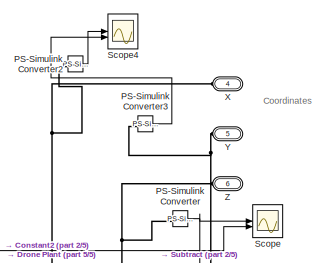
[diagram: root canvas - part 1/5, top right region]
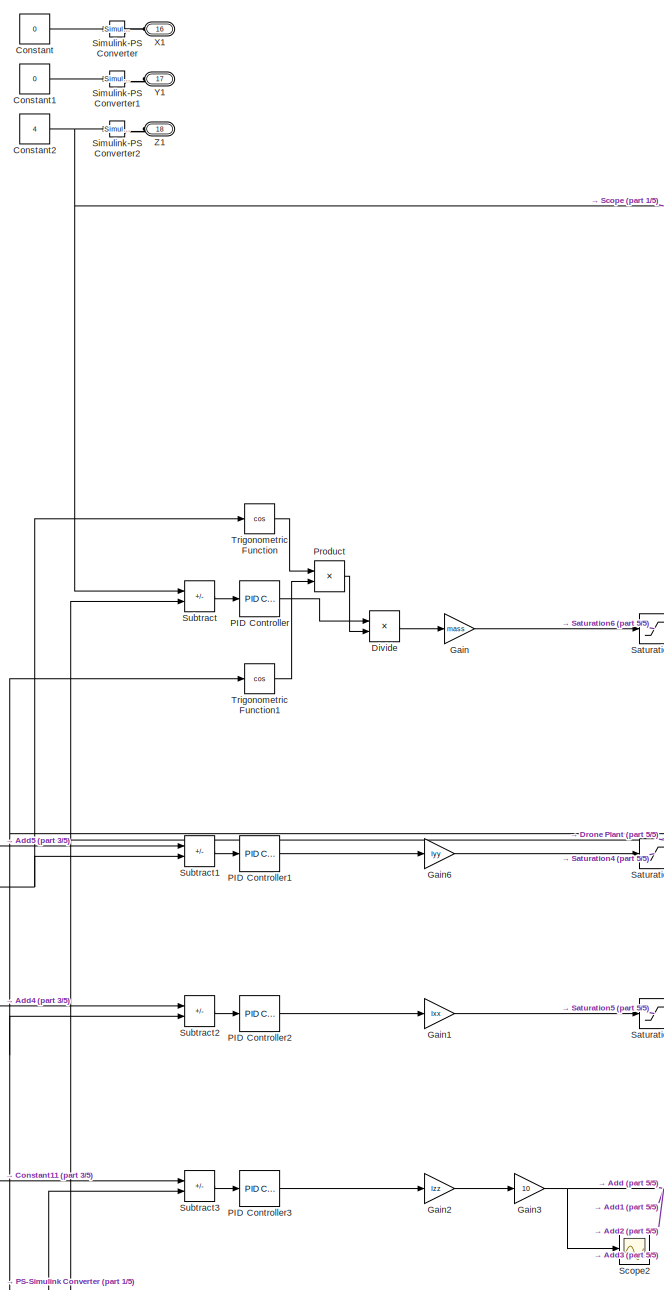
[diagram: root canvas - part 2/5, middle left region]
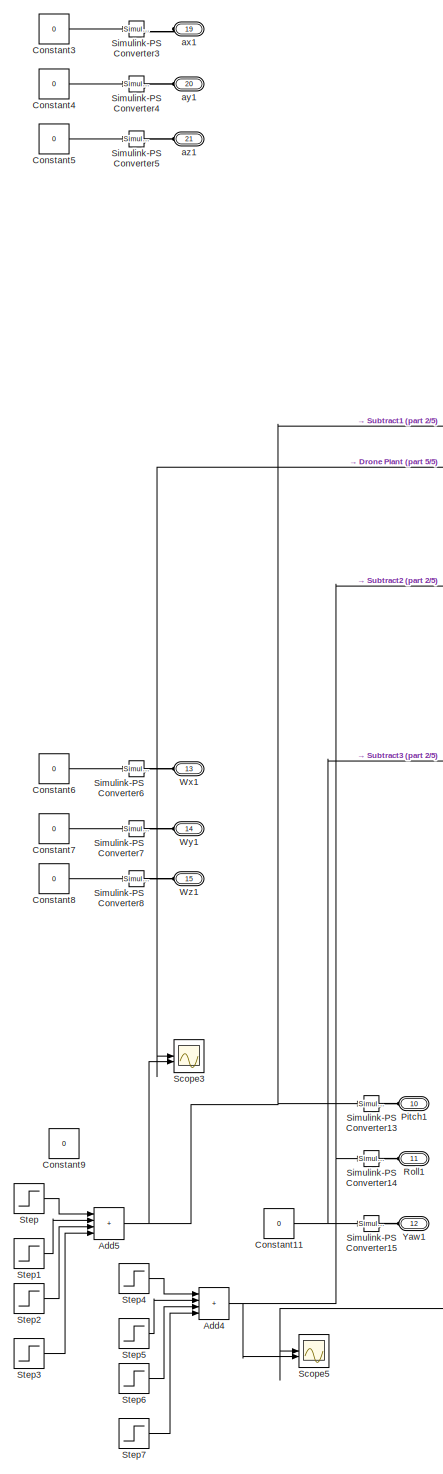
[diagram: root canvas - part 3/5, middle left region]
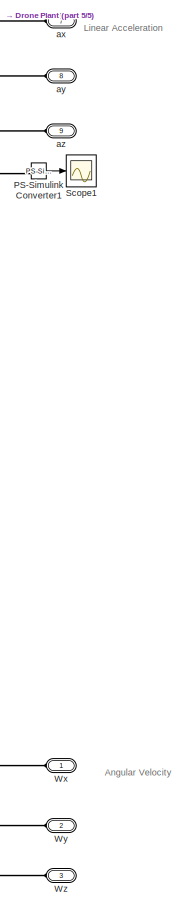
[diagram: root canvas - part 4/5, middle right region]
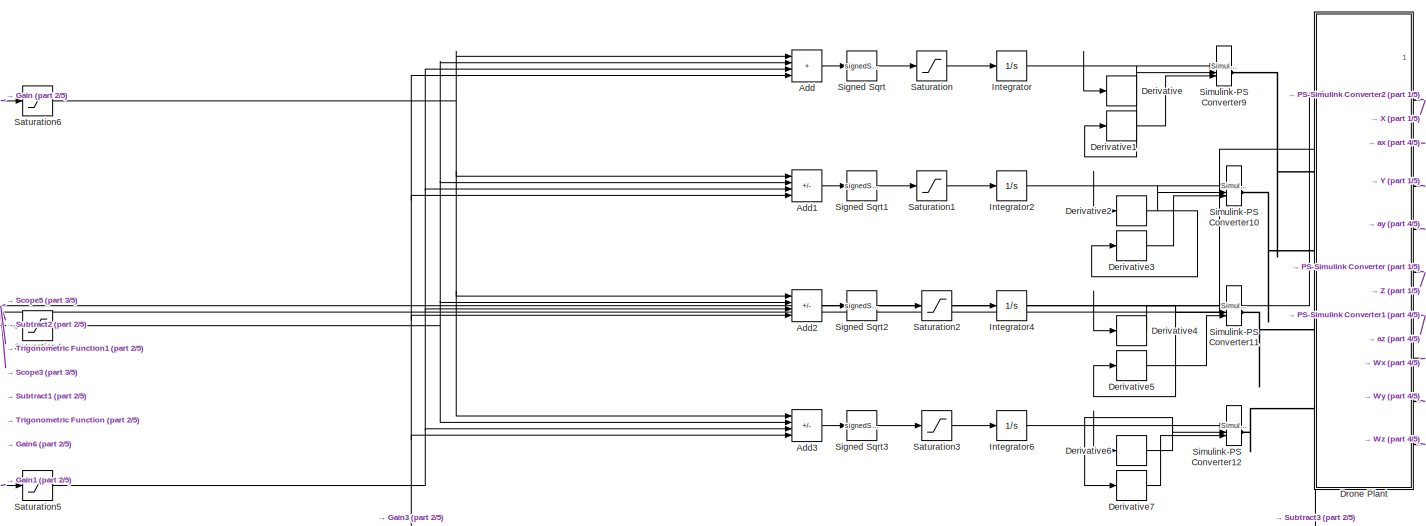
[diagram: root canvas - part 5/5, central region]
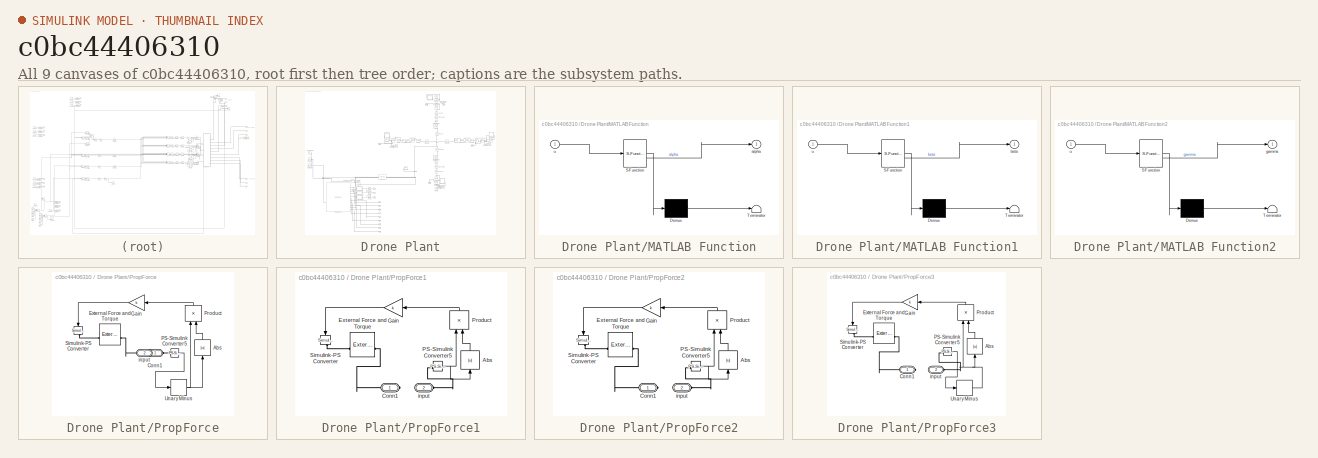
[diagram: thumbnail index - all 9 canvases of the model, root first then tree order]
MODEL slx_c0bc44406310
KIND model
CONFIG AbsTol = 1e-3
CONFIG EnableMultiTasking = on
CONFIG FixedStep = auto
CONFIG MaxStep = auto
CONFIG MinStep = auto
CONFIG RelTol = 1e-3
CONFIG SampleTimeConstraint = Unconstrained
CONFIG SolverName = VariableStepAuto
CONFIG StartTime = 0.0
CONFIG StopTime = 50
BLOCK [Sum] Add
  IconShape = rectangular
  Inputs = ++++
BLOCK [Sum] Add1
  IconShape = rectangular
  Inputs = ++--
BLOCK [Sum] Add2
  IconShape = rectangular
  Inputs = +--+
BLOCK [Sum] Add3
  IconShape = rectangular
  Inputs = +-+-
BLOCK [Sum] Add4
  IconShape = rectangular
  Inputs = ++++
BLOCK [Sum] Add5
  IconShape = rectangular
  Inputs = ++++
BLOCK [Constant] Constant
  Value = 0
BLOCK [Constant] Constant1
  Value = 0
BLOCK [Constant] Constant11
  Value = 0
BLOCK [Constant] Constant2
  Value = 4
BLOCK [Constant] Constant3
  Value = 0
BLOCK [Constant] Constant4
  Value = 0
BLOCK [Constant] Constant5
  Value = 0
BLOCK [Constant] Constant6
  Value = 0
BLOCK [Constant] Constant7
  Value = 0
BLOCK [Constant] Constant8
  Value = 0
BLOCK [Constant] Constant9
  Value = 0
BLOCK [Derivative] Derivative
BLOCK [Derivative] Derivative1
BLOCK [Derivative] Derivative2
BLOCK [Derivative] Derivative3
BLOCK [Derivative] Derivative4
BLOCK [Derivative] Derivative5
BLOCK [Derivative] Derivative6
BLOCK [Derivative] Derivative7
BLOCK [Product] Divide
  Inputs = */
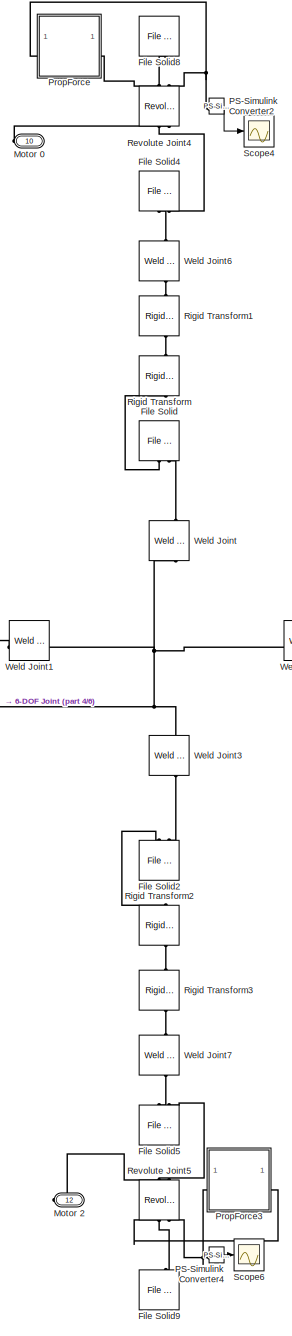
[diagram: Drone Plant - part 1/6, middle right region]
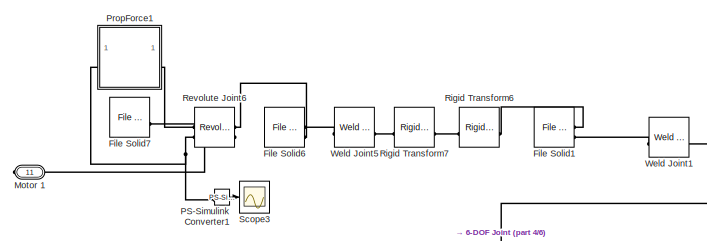
[diagram: Drone Plant - part 2/6, central region]
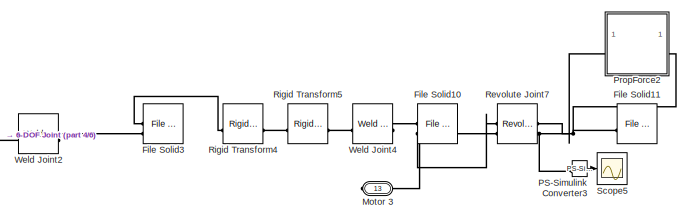
[diagram: Drone Plant - part 3/6, middle right region]
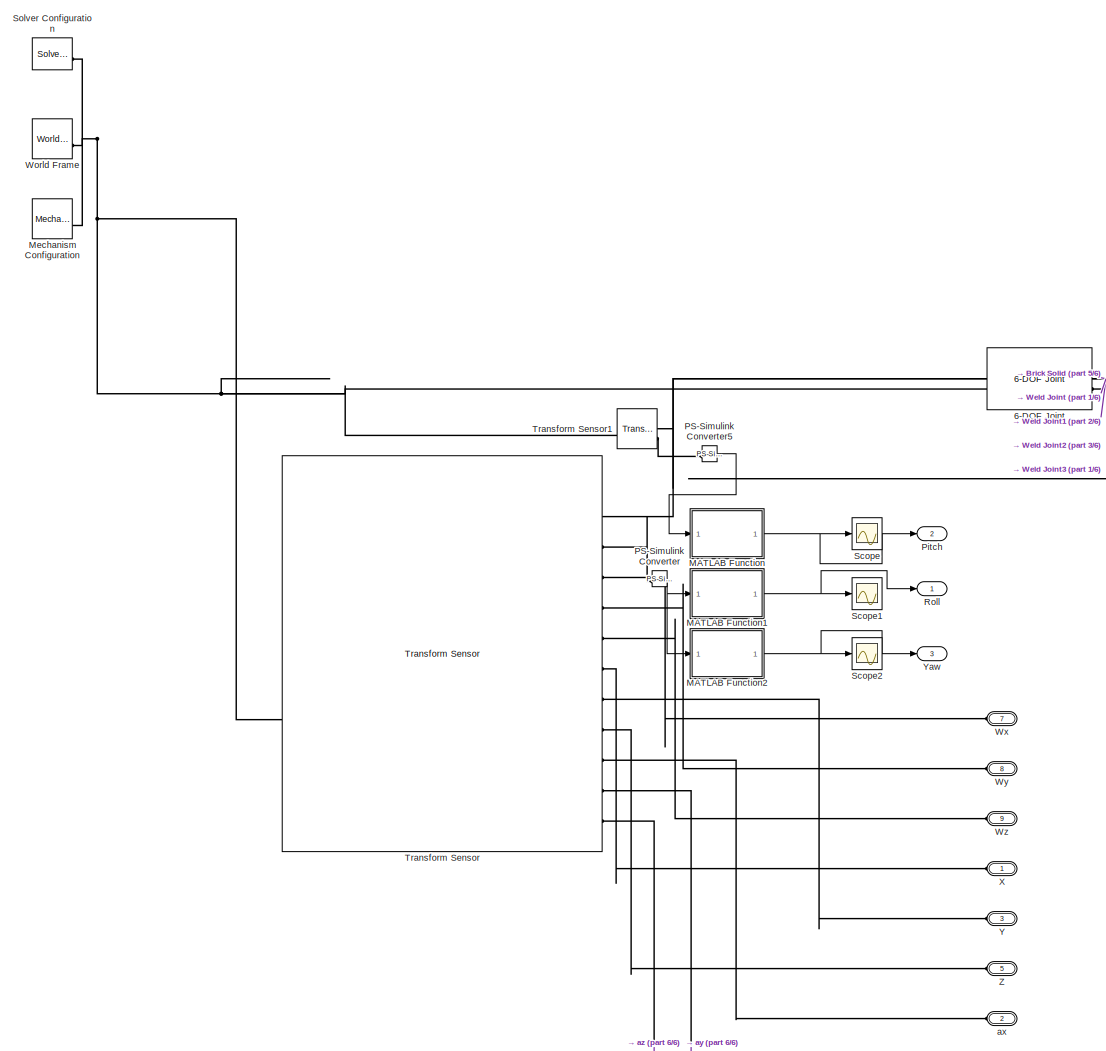
[diagram: Drone Plant - part 4/6, bottom left region]
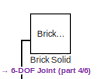
[diagram: Drone Plant - part 5/6, central region]
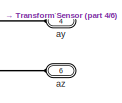
[diagram: Drone Plant - part 6/6, bottom center region]
BLOCK [SubSystem] Drone Plant
  NameLocation = top
BLOCK [Reference] Drone Plant/6-DOF Joint  REF=sm_lib/Joints/6-DOF Joint
  SourceBlock = sm_lib/Joints/6-DOF Joint
  SourceType = 6-DOF Joint
BLOCK [Reference] Drone Plant/Brick Solid  REF=sm_lib/Body Elements/Brick Solid
  SourceBlock = sm_lib/Body Elements/Brick Solid
  SourceType = Brick Solid
BLOCK [Reference] Drone Plant/File Solid  REF=sm_lib/Body Elements/File Solid
  NameLocation = right
  SourceBlock = sm_lib/Body Elements/File Solid
  SourceType = File Solid
BLOCK [Reference] Drone Plant/File Solid1  REF=sm_lib/Body Elements/File Solid
  SourceBlock = sm_lib/Body Elements/File Solid
  SourceType = File Solid
BLOCK [Reference] Drone Plant/File Solid10  REF=sm_lib/Body Elements/File Solid
  SourceBlock = sm_lib/Body Elements/File Solid
  SourceType = File Solid
BLOCK [Reference] Drone Plant/File Solid11  REF=sm_lib/Body Elements/File Solid
  SourceBlock = sm_lib/Body Elements/File Solid
  SourceType = File Solid
BLOCK [Reference] Drone Plant/File Solid2  REF=sm_lib/Body Elements/File Solid
  NameLocation = left
  SourceBlock = sm_lib/Body Elements/File Solid
  SourceType = File Solid
BLOCK [Reference] Drone Plant/File Solid3  REF=sm_lib/Body Elements/File Solid
  SourceBlock = sm_lib/Body Elements/File Solid
  SourceType = File Solid
BLOCK [Reference] Drone Plant/File Solid4  REF=sm_lib/Body Elements/File Solid
  NameLocation = right
  SourceBlock = sm_lib/Body Elements/File Solid
  SourceType = File Solid
BLOCK [Reference] Drone Plant/File Solid5  REF=sm_lib/Body Elements/File Solid
  NameLocation = left
  SourceBlock = sm_lib/Body Elements/File Solid
  SourceType = File Solid
BLOCK [Reference] Drone Plant/File Solid6  REF=sm_lib/Body Elements/File Solid
  NameLocation = top
  SourceBlock = sm_lib/Body Elements/File Solid
  SourceType = File Solid
BLOCK [Reference] Drone Plant/File Solid7  REF=sm_lib/Body Elements/File Solid
  NameLocation = top
  SourceBlock = sm_lib/Body Elements/File Solid
  SourceType = File Solid
BLOCK [Reference] Drone Plant/File Solid8  REF=sm_lib/Body Elements/File Solid
  NameLocation = right
  SourceBlock = sm_lib/Body Elements/File Solid
  SourceType = File Solid
BLOCK [Reference] Drone Plant/File Solid9  REF=sm_lib/Body Elements/File Solid
  NameLocation = left
  SourceBlock = sm_lib/Body Elements/File Solid
  SourceType = File Solid
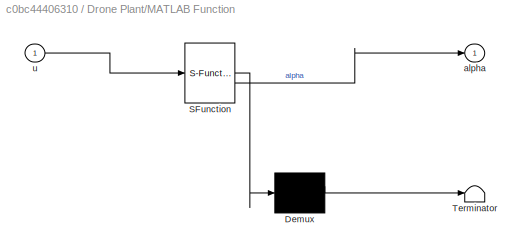
BLOCK [SubSystem] Drone Plant/MATLAB Function
  ErrorFcn = Stateflow.Translate.translate
  LibrarySourceBlock = simulink/User-Defined\nFunctions/MATLAB Function
  PermitHierarchicalResolution = ExplicitOnly
  SFBlockType = MATLAB Function
  TreatAsAtomicUnit = on
BLOCK [Demux] Drone Plant/MATLAB Function/ Demux 
  Outputs = 1
BLOCK [S-Function] Drone Plant/MATLAB Function/ SFunction 
  EnableBusSupport = on
  FunctionName = sf_sfun
  PortCounts = [1 2]
  SFcnIsStateOwnerBlock = off
  SFunctionDeploymentMode = off
  Tag = Stateflow S-Function 2
BLOCK [Terminator] Drone Plant/MATLAB Function/ Terminator 
BLOCK [Outport] Drone Plant/MATLAB Function/alpha
BLOCK [Inport] Drone Plant/MATLAB Function/u
BLOCK [SubSystem] Drone Plant/MATLAB Function1
  ErrorFcn = Stateflow.Translate.translate
  LibrarySourceBlock = simulink/User-Defined\nFunctions/MATLAB Function
  PermitHierarchicalResolution = ExplicitOnly
  SFBlockType = MATLAB Function
  TreatAsAtomicUnit = on
BLOCK [Demux] Drone Plant/MATLAB Function1/ Demux 
  Outputs = 1
BLOCK [S-Function] Drone Plant/MATLAB Function1/ SFunction 
  EnableBusSupport = on
  FunctionName = sf_sfun
  PortCounts = [1 2]
  SFcnIsStateOwnerBlock = off
  SFunctionDeploymentMode = off
  Tag = Stateflow S-Function 1
BLOCK [Terminator] Drone Plant/MATLAB Function1/ Terminator 
BLOCK [Outport] Drone Plant/MATLAB Function1/beta
BLOCK [Inport] Drone Plant/MATLAB Function1/u
BLOCK [SubSystem] Drone Plant/MATLAB Function2
  ErrorFcn = Stateflow.Translate.translate
  LibrarySourceBlock = simulink/User-Defined\nFunctions/MATLAB Function
  PermitHierarchicalResolution = ExplicitOnly
  SFBlockType = MATLAB Function
  TreatAsAtomicUnit = on
BLOCK [Demux] Drone Plant/MATLAB Function2/ Demux 
  Outputs = 1
BLOCK [S-Function] Drone Plant/MATLAB Function2/ SFunction 
  EnableBusSupport = on
  FunctionName = sf_sfun
  PortCounts = [1 2]
  SFcnIsStateOwnerBlock = off
  SFunctionDeploymentMode = off
  Tag = Stateflow S-Function 3
BLOCK [Terminator] Drone Plant/MATLAB Function2/ Terminator 
BLOCK [Outport] Drone Plant/MATLAB Function2/gamma
BLOCK [Inport] Drone Plant/MATLAB Function2/u
BLOCK [Reference] Drone Plant/Mechanism Configuration  REF=sm_lib/Utilities/Mechanism
Configuration
  SourceBlock = sm_lib/Utilities/Mechanism\nConfiguration
  SourceType = Mechanism\nConfiguration
BLOCK [PMIOPort] Drone Plant/Motor 0
  Port = 10
  Side = Right
BLOCK [PMIOPort] Drone Plant/Motor 1
  Port = 11
  Side = Right
BLOCK [PMIOPort] Drone Plant/Motor 2
  Port = 12
  Side = Right
BLOCK [PMIOPort] Drone Plant/Motor 3
  Port = 13
  Side = Right
BLOCK [Reference] Drone Plant/PS-Simulink Converter  REF=nesl_utility/PS-Simulink
Converter
  SourceBlock = nesl_utility/PS-Simulink\nConverter
  SourceType = PS-Simulink\nConverter
BLOCK [Reference] Drone Plant/PS-Simulink Converter1  REF=nesl_utility/PS-Simulink
Converter
  SourceBlock = nesl_utility/PS-Simulink\nConverter
  SourceType = PS-Simulink\nConverter
BLOCK [Reference] Drone Plant/PS-Simulink Converter2  REF=nesl_utility/PS-Simulink
Converter
  SourceBlock = nesl_utility/PS-Simulink\nConverter
  SourceType = PS-Simulink\nConverter
BLOCK [Reference] Drone Plant/PS-Simulink Converter3  REF=nesl_utility/PS-Simulink
Converter
  SourceBlock = nesl_utility/PS-Simulink\nConverter
  SourceType = PS-Simulink\nConverter
BLOCK [Reference] Drone Plant/PS-Simulink Converter4  REF=nesl_utility/PS-Simulink
Converter
  SourceBlock = nesl_utility/PS-Simulink\nConverter
  SourceType = PS-Simulink\nConverter
BLOCK [Reference] Drone Plant/PS-Simulink Converter5  REF=nesl_utility/PS-Simulink
Converter
  SourceBlock = nesl_utility/PS-Simulink\nConverter
  SourceType = PS-Simulink\nConverter
BLOCK [Outport] Drone Plant/Pitch
  Port = 2
BLOCK [SubSystem] Drone Plant/PropForce
BLOCK [Abs] Drone Plant/PropForce/Abs
  NameLocation = right
  SaturateOnIntegerOverflow = off
BLOCK [PMIOPort] Drone Plant/PropForce/Conn1
  Side = Right
BLOCK [Reference] Drone Plant/PropForce/External Force and Torque  REF=sm_lib/Forces and
Torques/External Force
and Torque
  SourceBlock = sm_lib/Forces and\nTorques/External Force\nand Torque
  SourceType = External Force\nand Torque
BLOCK [Gain] Drone Plant/PropForce/Gain
  Gain = k
  NameLocation = top
BLOCK [Reference] Drone Plant/PropForce/PS-Simulink Converter5  REF=nesl_utility/PS-Simulink
Converter
  SourceBlock = nesl_utility/PS-Simulink\nConverter
  SourceType = PS-Simulink\nConverter
BLOCK [Product] Drone Plant/PropForce/Product
  NameLocation = right
BLOCK [Reference] Drone Plant/PropForce/Simulink-PS Converter  REF=nesl_utility/Simulink-PS
Converter
  NameLocation = left
  SourceBlock = nesl_utility/Simulink-PS\nConverter
  SourceType = Simulink-PS\nConverter
BLOCK [UnaryMinus] Drone Plant/PropForce/Unary Minus
BLOCK [PMIOPort] Drone Plant/PropForce/input
  Port = 2
  Side = Left
BLOCK [SubSystem] Drone Plant/PropForce1
BLOCK [Abs] Drone Plant/PropForce1/Abs
  NameLocation = right
  SaturateOnIntegerOverflow = off
BLOCK [PMIOPort] Drone Plant/PropForce1/Conn1
  Side = Right
BLOCK [Reference] Drone Plant/PropForce1/External Force and Torque  REF=sm_lib/Forces and
Torques/External Force
and Torque
  SourceBlock = sm_lib/Forces and\nTorques/External Force\nand Torque
  SourceType = External Force\nand Torque
BLOCK [Gain] Drone Plant/PropForce1/Gain
  Gain = k
  NameLocation = top
BLOCK [Reference] Drone Plant/PropForce1/PS-Simulink Converter5  REF=nesl_utility/PS-Simulink
Converter
  SourceBlock = nesl_utility/PS-Simulink\nConverter
  SourceType = PS-Simulink\nConverter
BLOCK [Product] Drone Plant/PropForce1/Product
  NameLocation = right
BLOCK [Reference] Drone Plant/PropForce1/Simulink-PS Converter  REF=nesl_utility/Simulink-PS
Converter
  NameLocation = left
  SourceBlock = nesl_utility/Simulink-PS\nConverter
  SourceType = Simulink-PS\nConverter
BLOCK [PMIOPort] Drone Plant/PropForce1/input
  Port = 2
  Side = Left
BLOCK [SubSystem] Drone Plant/PropForce2
BLOCK [Abs] Drone Plant/PropForce2/Abs
  NameLocation = right
  SaturateOnIntegerOverflow = off
BLOCK [PMIOPort] Drone Plant/PropForce2/Conn1
  Side = Right
BLOCK [Reference] Drone Plant/PropForce2/External Force and Torque  REF=sm_lib/Forces and
Torques/External Force
and Torque
  SourceBlock = sm_lib/Forces and\nTorques/External Force\nand Torque
  SourceType = External Force\nand Torque
BLOCK [Gain] Drone Plant/PropForce2/Gain
  Gain = k
  NameLocation = top
BLOCK [Reference] Drone Plant/PropForce2/PS-Simulink Converter5  REF=nesl_utility/PS-Simulink
Converter
  SourceBlock = nesl_utility/PS-Simulink\nConverter
  SourceType = PS-Simulink\nConverter
BLOCK [Product] Drone Plant/PropForce2/Product
  NameLocation = right
BLOCK [Reference] Drone Plant/PropForce2/Simulink-PS Converter  REF=nesl_utility/Simulink-PS
Converter
  NameLocation = left
  SourceBlock = nesl_utility/Simulink-PS\nConverter
  SourceType = Simulink-PS\nConverter
BLOCK [PMIOPort] Drone Plant/PropForce2/input
  Port = 2
  Side = Left
BLOCK [SubSystem] Drone Plant/PropForce3
BLOCK [Abs] Drone Plant/PropForce3/Abs
  NameLocation = right
  SaturateOnIntegerOverflow = off
BLOCK [PMIOPort] Drone Plant/PropForce3/Conn1
  Side = Right
BLOCK [Reference] Drone Plant/PropForce3/External Force and Torque  REF=sm_lib/Forces and
Torques/External Force
and Torque
  SourceBlock = sm_lib/Forces and\nTorques/External Force\nand Torque
  SourceType = External Force\nand Torque
BLOCK [Gain] Drone Plant/PropForce3/Gain
  Gain = k
  NameLocation = top
BLOCK [Reference] Drone Plant/PropForce3/PS-Simulink Converter5  REF=nesl_utility/PS-Simulink
Converter
  SourceBlock = nesl_utility/PS-Simulink\nConverter
  SourceType = PS-Simulink\nConverter
BLOCK [Product] Drone Plant/PropForce3/Product
  NameLocation = right
BLOCK [Reference] Drone Plant/PropForce3/Simulink-PS Converter  REF=nesl_utility/Simulink-PS
Converter
  NameLocation = left
  SourceBlock = nesl_utility/Simulink-PS\nConverter
  SourceType = Simulink-PS\nConverter
BLOCK [UnaryMinus] Drone Plant/PropForce3/Unary Minus
BLOCK [PMIOPort] Drone Plant/PropForce3/input
  Port = 2
  Side = Left
BLOCK [Reference] Drone Plant/Revolute Joint4  REF=sm_lib/Joints/Revolute Joint
  NameLocation = right
  SourceBlock = sm_lib/Joints/Revolute Joint
  SourceType = Revolute Joint
BLOCK [Reference] Drone Plant/Revolute Joint5  REF=sm_lib/Joints/Revolute Joint
  NameLocation = left
  SourceBlock = sm_lib/Joints/Revolute Joint
  SourceType = Revolute Joint
BLOCK [Reference] Drone Plant/Revolute Joint6  REF=sm_lib/Joints/Revolute Joint
  NameLocation = top
  SourceBlock = sm_lib/Joints/Revolute Joint
  SourceType = Revolute Joint
BLOCK [Reference] Drone Plant/Revolute Joint7  REF=sm_lib/Joints/Revolute Joint
  SourceBlock = sm_lib/Joints/Revolute Joint
  SourceType = Revolute Joint
BLOCK [Reference] Drone Plant/Rigid Transform  REF=sm_lib/Frames and
Transforms/Rigid
Transform
  NameLocation = right
  SourceBlock = sm_lib/Frames and\nTransforms/Rigid\nTransform
  SourceType = Rigid\nTransform
BLOCK [Reference] Drone Plant/Rigid Transform1  REF=sm_lib/Frames and
Transforms/Rigid
Transform
  NameLocation = right
  SourceBlock = sm_lib/Frames and\nTransforms/Rigid\nTransform
  SourceType = Rigid\nTransform
BLOCK [Reference] Drone Plant/Rigid Transform2  REF=sm_lib/Frames and
Transforms/Rigid
Transform
  NameLocation = left
  SourceBlock = sm_lib/Frames and\nTransforms/Rigid\nTransform
  SourceType = Rigid\nTransform
BLOCK [Reference] Drone Plant/Rigid Transform3  REF=sm_lib/Frames and
Transforms/Rigid
Transform
  NameLocation = left
  SourceBlock = sm_lib/Frames and\nTransforms/Rigid\nTransform
  SourceType = Rigid\nTransform
BLOCK [Reference] Drone Plant/Rigid Transform4  REF=sm_lib/Frames and
Transforms/Rigid
Transform
  SourceBlock = sm_lib/Frames and\nTransforms/Rigid\nTransform
  SourceType = Rigid\nTransform
BLOCK [Reference] Drone Plant/Rigid Transform5  REF=sm_lib/Frames and
Transforms/Rigid
Transform
  SourceBlock = sm_lib/Frames and\nTransforms/Rigid\nTransform
  SourceType = Rigid\nTransform
BLOCK [Reference] Drone Plant/Rigid Transform6  REF=sm_lib/Frames and
Transforms/Rigid
Transform
  NameLocation = top
  SourceBlock = sm_lib/Frames and\nTransforms/Rigid\nTransform
  SourceType = Rigid\nTransform
BLOCK [Reference] Drone Plant/Rigid Transform7  REF=sm_lib/Frames and
Transforms/Rigid
Transform
  NameLocation = top
  SourceBlock = sm_lib/Frames and\nTransforms/Rigid\nTransform
  SourceType = Rigid\nTransform
BLOCK [Outport] Drone Plant/Roll
BLOCK [Scope] Drone Plant/Scope
  Floating = off
  NumInputPorts = 1
  ScopeSpecificationString = Simulink.scopes.TimeScopeBlockCfg('CurrentConfiguration', extmgr.ConfigurationSet(extmgr.Configuration('Core','General UI',true),extmgr.Configuration('Core','Source UI',true),extmgr.Configuration('Sources','WiredSimulink',true),extmgr.Configuration('Visuals','Time Domain',true,'SerializedDisplays',{struct('MinYLimReal','-18.76626','MaxYLimReal','17.41913','YLabelReal','','MinYLimMag','0.00000','Ma...<+1424ch>
BLOCK [Scope] Drone Plant/Scope1
  Floating = off
  NumInputPorts = 1
  ScopeSpecificationString = Simulink.scopes.TimeScopeBlockCfg('CurrentConfiguration', extmgr.ConfigurationSet(extmgr.Configuration('Core','General UI',true),extmgr.Configuration('Core','Source UI',true),extmgr.Configuration('Sources','WiredSimulink',true,'DataLoggingVariableName','ScopeData1'),extmgr.Configuration('Visuals','Time Domain',true,'SerializedDisplays',{struct('MinYLimReal','-24.01205','MaxYLimReal','10.66529','YL...<+1462ch>
BLOCK [Scope] Drone Plant/Scope2
  Floating = off
  NumInputPorts = 1
  ScopeSpecificationString = Simulink.scopes.TimeScopeBlockCfg('CurrentConfiguration', extmgr.ConfigurationSet(extmgr.Configuration('Core','General UI',true),extmgr.Configuration('Core','Source UI',true),extmgr.Configuration('Sources','WiredSimulink',true,'DataLoggingVariableName','ScopeData2'),extmgr.Configuration('Visuals','Time Domain',true,'SerializedDisplays',{struct('MinYLimReal','-13.18037','MaxYLimReal','1.64034','YLa...<+1485ch>
BLOCK [Scope] Drone Plant/Scope3
  Floating = off
  NumInputPorts = 1
  ScopeSpecificationString = Simulink.scopes.TimeScopeBlockCfg('CurrentConfiguration', extmgr.ConfigurationSet(extmgr.Configuration('Core','General UI',true),extmgr.Configuration('Core','Source UI',true),extmgr.Configuration('Sources','WiredSimulink',true,'DataLoggingVariableName','ScopeData3'),extmgr.Configuration('Visuals','Time Domain',true,'SerializedDisplays',{struct('MinYLimReal','-20.06981','MaxYLimReal','180.62825','Y...<+1425ch>
BLOCK [Scope] Drone Plant/Scope4
  Floating = off
  NumInputPorts = 1
  ScopeSpecificationString = Simulink.scopes.TimeScopeBlockCfg('CurrentConfiguration', extmgr.ConfigurationSet(extmgr.Configuration('Core','General UI',true),extmgr.Configuration('Core','Source UI',true),extmgr.Configuration('Sources','WiredSimulink',true,'DataLoggingVariableName','ScopeData4'),extmgr.Configuration('Visuals','Time Domain',true,'SerializedDisplays',{struct('MinYLimReal','-14.36009','MaxYLimReal','129.24079','Y...<+1426ch>
BLOCK [Scope] Drone Plant/Scope5
  Floating = off
  NumInputPorts = 1
  ScopeSpecificationString = Simulink.scopes.TimeScopeBlockCfg('CurrentConfiguration', extmgr.ConfigurationSet(extmgr.Configuration('Core','General UI',true),extmgr.Configuration('Core','Source UI',true),extmgr.Configuration('Sources','WiredSimulink',true,'DataLoggingVariableName','ScopeData5'),extmgr.Configuration('Visuals','Time Domain',true,'SerializedDisplays',{struct('MinYLimReal','-14.36006','MaxYLimReal','129.24057','Y...<+1428ch>
BLOCK [Scope] Drone Plant/Scope6
  Floating = off
  NumInputPorts = 1
  ScopeSpecificationString = Simulink.scopes.TimeScopeBlockCfg('CurrentConfiguration', extmgr.ConfigurationSet(extmgr.Configuration('Core','General UI',true),extmgr.Configuration('Core','Source UI',true),extmgr.Configuration('Sources','WiredSimulink',true,'DataLoggingVariableName','ScopeData6'),extmgr.Configuration('Visuals','Time Domain',true,'SerializedDisplays',{struct('MinYLimReal','-16.75','MaxYLimReal','150.75','YLabelR...<+1408ch>
BLOCK [Reference] Drone Plant/Solver Configuration  REF=nesl_utility/Solver
Configuration
  SourceBlock = nesl_utility/Solver\nConfiguration
  SourceType = Solver\nConfiguration
BLOCK [Reference] Drone Plant/Transform Sensor  REF=sm_lib/Frames and
Transforms/Transform
Sensor
  SourceBlock = sm_lib/Frames and\nTransforms/Transform\nSensor
  SourceType = Transform\nSensor
BLOCK [Reference] Drone Plant/Transform Sensor1  REF=sm_lib/Frames and
Transforms/Transform
Sensor
  SourceBlock = sm_lib/Frames and\nTransforms/Transform\nSensor
  SourceType = Transform\nSensor
BLOCK [Reference] Drone Plant/Weld Joint  REF=sm_lib/Joints/Weld Joint
  NameLocation = right
  SourceBlock = sm_lib/Joints/Weld Joint
  SourceType = Weld Joint
BLOCK [Reference] Drone Plant/Weld Joint1  REF=sm_lib/Joints/Weld Joint
  NameLocation = top
  SourceBlock = sm_lib/Joints/Weld Joint
  SourceType = Weld Joint
BLOCK [Reference] Drone Plant/Weld Joint2  REF=sm_lib/Joints/Weld Joint
  SourceBlock = sm_lib/Joints/Weld Joint
  SourceType = Weld Joint
BLOCK [Reference] Drone Plant/Weld Joint3  REF=sm_lib/Joints/Weld Joint
  NameLocation = left
  SourceBlock = sm_lib/Joints/Weld Joint
  SourceType = Weld Joint
BLOCK [Reference] Drone Plant/Weld Joint4  REF=sm_lib/Joints/Weld Joint
  SourceBlock = sm_lib/Joints/Weld Joint
  SourceType = Weld Joint
BLOCK [Reference] Drone Plant/Weld Joint5  REF=sm_lib/Joints/Weld Joint
  NameLocation = top
  SourceBlock = sm_lib/Joints/Weld Joint
  SourceType = Weld Joint
BLOCK [Reference] Drone Plant/Weld Joint6  REF=sm_lib/Joints/Weld Joint
  NameLocation = right
  SourceBlock = sm_lib/Joints/Weld Joint
  SourceType = Weld Joint
BLOCK [Reference] Drone Plant/Weld Joint7  REF=sm_lib/Joints/Weld Joint
  NameLocation = left
  SourceBlock = sm_lib/Joints/Weld Joint
  SourceType = Weld Joint
BLOCK [Reference] Drone Plant/World Frame  REF=sm_lib/Frames and
Transforms/World Frame
  SourceBlock = sm_lib/Frames and\nTransforms/World Frame
  SourceType = World Frame
BLOCK [PMIOPort] Drone Plant/Wx
  NameLocation = top
  Port = 7
  Side = Left
BLOCK [PMIOPort] Drone Plant/Wy
  NameLocation = top
  Port = 8
  Side = Left
BLOCK [PMIOPort] Drone Plant/Wz
  NameLocation = top
  Port = 9
  Side = Left
BLOCK [PMIOPort] Drone Plant/X
  NameLocation = top
  Side = Left
BLOCK [PMIOPort] Drone Plant/Y
  NameLocation = top
  Port = 3
  Side = Left
BLOCK [Outport] Drone Plant/Yaw
  Port = 3
BLOCK [PMIOPort] Drone Plant/Z
  NameLocation = top
  Port = 5
  Side = Left
BLOCK [PMIOPort] Drone Plant/ax
  NameLocation = top
  Port = 2
  Side = Left
BLOCK [PMIOPort] Drone Plant/ay
  NameLocation = top
  Port = 4
  Side = Left
BLOCK [PMIOPort] Drone Plant/az
  NameLocation = top
  Port = 6
  Side = Left
BLOCK [Gain] Gain
  Gain = mass
BLOCK [Gain] Gain1
  Gain = Ixx
BLOCK [Gain] Gain2
  Gain = Izz
BLOCK [Gain] Gain3
  Gain = 10
BLOCK [Gain] Gain6
  Gain = Iyy
BLOCK [Integrator] Integrator
BLOCK [Integrator] Integrator2
BLOCK [Integrator] Integrator4
BLOCK [Integrator] Integrator6
BLOCK [Reference] PID Controller  REF=slpidlib/PID Controller
  LibrarySourceBlock = simulink/Continuous/PID Controller
  SourceBlock = slpidlib/PID Controller
  SourceType = PID 1dof
BLOCK [Reference] PID Controller1  REF=slpidlib/PID Controller
  LibrarySourceBlock = simulink/Continuous/PID Controller
  NameLocation = left
  SourceBlock = slpidlib/PID Controller
  SourceType = PID 1dof
BLOCK [Reference] PID Controller2  REF=slpidlib/PID Controller
  LibrarySourceBlock = simulink/Continuous/PID Controller
  NameLocation = left
  SourceBlock = slpidlib/PID Controller
  SourceType = PID 1dof
BLOCK [Reference] PID Controller3  REF=slpidlib/PID Controller
  LibrarySourceBlock = simulink/Continuous/PID Controller
  SourceBlock = slpidlib/PID Controller
  SourceType = PID 1dof
BLOCK [Reference] PS-Simulink Converter  REF=nesl_utility/PS-Simulink
Converter
  SourceBlock = nesl_utility/PS-Simulink\nConverter
  SourceType = PS-Simulink\nConverter
BLOCK [Reference] PS-Simulink Converter1  REF=nesl_utility/PS-Simulink
Converter
  SourceBlock = nesl_utility/PS-Simulink\nConverter
  SourceType = PS-Simulink\nConverter
BLOCK [Reference] PS-Simulink Converter2  REF=nesl_utility/PS-Simulink
Converter
  SourceBlock = nesl_utility/PS-Simulink\nConverter
  SourceType = PS-Simulink\nConverter
BLOCK [Reference] PS-Simulink Converter3  REF=nesl_utility/PS-Simulink
Converter
  SourceBlock = nesl_utility/PS-Simulink\nConverter
  SourceType = PS-Simulink\nConverter
BLOCK [PMIOPort] Pitch1
  NameLocation = top
  Port = 10
  Side = Left
BLOCK [Product] Product
BLOCK [PMIOPort] Roll1
  NameLocation = top
  Port = 11
  Side = Left
BLOCK [Saturate] Saturation
  LowerLimit = -225
  UpperLimit = 225
BLOCK [Saturate] Saturation1
  LowerLimit = -225
  UpperLimit = 225
BLOCK [Saturate] Saturation2
  LowerLimit = -225
  UpperLimit = 225
BLOCK [Saturate] Saturation3
  LowerLimit = -225
  UpperLimit = 225
BLOCK [Saturate] Saturation4
  LowerLimit = -1200
  UpperLimit = 1200
BLOCK [Saturate] Saturation5
  LowerLimit = -1200
  UpperLimit = 1200
BLOCK [Saturate] Saturation6
  LowerLimit = -15000
  UpperLimit = 15000
BLOCK [Scope] Scope
  Floating = off
  NumInputPorts = 2
  ScopeSpecificationString = Simulink.scopes.TimeScopeBlockCfg('CurrentConfiguration', extmgr.ConfigurationSet(extmgr.Configuration('Core','General UI',true),extmgr.Configuration('Core','Source UI',true),extmgr.Configuration('Sources','WiredSimulink',true,'DataLoggingVariableName','ScopeData7'),extmgr.Configuration('Visuals','Time Domain',true,'SerializedDisplays',{struct('MinYLimReal','-4.30264','MaxYLimReal','10.00000','YLa...<+1504ch>
BLOCK [Scope] Scope1
  Floating = off
  NumInputPorts = 1
  ScopeSpecificationString = Simulink.scopes.TimeScopeBlockCfg('CurrentConfiguration', extmgr.ConfigurationSet(extmgr.Configuration('Core','General UI',true),extmgr.Configuration('Core','Source UI',true),extmgr.Configuration('Sources','WiredSimulink',true,'DataLoggingVariableName','ScopeData8'),extmgr.Configuration('Visuals','Time Domain',true,'SerializedDisplays',{struct('MinYLimReal','-81741198.79942','MaxYLimReal','7356706...<+1472ch>
BLOCK [Scope] Scope2
  Floating = off
  NumInputPorts = 1
  ScopeSpecificationString = Simulink.scopes.TimeScopeBlockCfg('CurrentConfiguration', extmgr.ConfigurationSet(extmgr.Configuration('Core','General UI',true),extmgr.Configuration('Core','Source UI',true),extmgr.Configuration('Sources','WiredSimulink',true,'DataLoggingVariableName','ScopeData1'),extmgr.Configuration('Visuals','Time Domain',true,'SerializedDisplays',{struct('MinYLimReal','-226.84181','MaxYLimReal','999.66094','...<+1455ch>
BLOCK [Scope] Scope3
  Floating = off
  NumInputPorts = 2
  ScopeSpecificationString = Simulink.scopes.TimeScopeBlockCfg('CurrentConfiguration', extmgr.ConfigurationSet(extmgr.Configuration('Core','General UI',true),extmgr.Configuration('Core','Source UI',true),extmgr.Configuration('Sources','WiredSimulink',true,'DataLoggingVariableName','ScopeData2'),extmgr.Configuration('Visuals','Time Domain',true,'SerializedDisplays',{struct('MinYLimReal','-4.7875','MaxYLimReal','6.0875','YLabel...<+1439ch>
BLOCK [Scope] Scope4
  Floating = off
  NumInputPorts = 2
  ScopeSpecificationString = Simulink.scopes.TimeScopeBlockCfg('CurrentConfiguration', extmgr.ConfigurationSet(extmgr.Configuration('Core','General UI',true),extmgr.Configuration('Core','Source UI',true),extmgr.Configuration('Sources','WiredSimulink',true,'DataLoggingVariableName','ScopeData3'),extmgr.Configuration('Visuals','Time Domain',true,'SerializedDisplays',{struct('MinYLimReal','-4.30264','MaxYLimReal','10.00000','YLa...<+1519ch>
BLOCK [Scope] Scope5
  Floating = off
  NumInputPorts = 2
  ScopeSpecificationString = Simulink.scopes.TimeScopeBlockCfg('CurrentConfiguration', extmgr.ConfigurationSet(extmgr.Configuration('Core','General UI',true),extmgr.Configuration('Core','Source UI',true),extmgr.Configuration('Sources','WiredSimulink',true,'DataLoggingVariableName','ScopeData4'),extmgr.Configuration('Visuals','Time Domain',true,'SerializedDisplays',{struct('MinYLimReal','-4.7875','MaxYLimReal','6.0875','YLabel...<+1436ch>
BLOCK [Sqrt] Signed Sqrt
  Operator = signedSqrt
BLOCK [Sqrt] Signed Sqrt1
  Operator = signedSqrt
BLOCK [Sqrt] Signed Sqrt2
  Operator = signedSqrt
BLOCK [Sqrt] Signed Sqrt3
  Operator = signedSqrt
BLOCK [Reference] Simulink-PS Converter  REF=nesl_utility/Simulink-PS
Converter
  SourceBlock = nesl_utility/Simulink-PS\nConverter
  SourceType = Simulink-PS\nConverter
BLOCK [Reference] Simulink-PS Converter1  REF=nesl_utility/Simulink-PS
Converter
  SourceBlock = nesl_utility/Simulink-PS\nConverter
  SourceType = Simulink-PS\nConverter
BLOCK [Reference] Simulink-PS Converter10  REF=nesl_utility/Simulink-PS
Converter
  SourceBlock = nesl_utility/Simulink-PS\nConverter
  SourceType = Simulink-PS\nConverter
BLOCK [Reference] Simulink-PS Converter11  REF=nesl_utility/Simulink-PS
Converter
  SourceBlock = nesl_utility/Simulink-PS\nConverter
  SourceType = Simulink-PS\nConverter
BLOCK [Reference] Simulink-PS Converter12  REF=nesl_utility/Simulink-PS
Converter
  SourceBlock = nesl_utility/Simulink-PS\nConverter
  SourceType = Simulink-PS\nConverter
BLOCK [Reference] Simulink-PS Converter13  REF=nesl_utility/Simulink-PS
Converter
  SourceBlock = nesl_utility/Simulink-PS\nConverter
  SourceType = Simulink-PS\nConverter
BLOCK [Reference] Simulink-PS Converter14  REF=nesl_utility/Simulink-PS
Converter
  SourceBlock = nesl_utility/Simulink-PS\nConverter
  SourceType = Simulink-PS\nConverter
BLOCK [Reference] Simulink-PS Converter15  REF=nesl_utility/Simulink-PS
Converter
  SourceBlock = nesl_utility/Simulink-PS\nConverter
  SourceType = Simulink-PS\nConverter
BLOCK [Reference] Simulink-PS Converter2  REF=nesl_utility/Simulink-PS
Converter
  SourceBlock = nesl_utility/Simulink-PS\nConverter
  SourceType = Simulink-PS\nConverter
BLOCK [Reference] Simulink-PS Converter3  REF=nesl_utility/Simulink-PS
Converter
  SourceBlock = nesl_utility/Simulink-PS\nConverter
  SourceType = Simulink-PS\nConverter
BLOCK [Reference] Simulink-PS Converter4  REF=nesl_utility/Simulink-PS
Converter
  SourceBlock = nesl_utility/Simulink-PS\nConverter
  SourceType = Simulink-PS\nConverter
BLOCK [Reference] Simulink-PS Converter5  REF=nesl_utility/Simulink-PS
Converter
  SourceBlock = nesl_utility/Simulink-PS\nConverter
  SourceType = Simulink-PS\nConverter
BLOCK [Reference] Simulink-PS Converter6  REF=nesl_utility/Simulink-PS
Converter
  SourceBlock = nesl_utility/Simulink-PS\nConverter
  SourceType = Simulink-PS\nConverter
BLOCK [Reference] Simulink-PS Converter7  REF=nesl_utility/Simulink-PS
Converter
  SourceBlock = nesl_utility/Simulink-PS\nConverter
  SourceType = Simulink-PS\nConverter
BLOCK [Reference] Simulink-PS Converter8  REF=nesl_utility/Simulink-PS
Converter
  SourceBlock = nesl_utility/Simulink-PS\nConverter
  SourceType = Simulink-PS\nConverter
BLOCK [Reference] Simulink-PS Converter9  REF=nesl_utility/Simulink-PS
Converter
  SourceBlock = nesl_utility/Simulink-PS\nConverter
  SourceType = Simulink-PS\nConverter
BLOCK [Step] Step
  After = 5
  SampleTime = 0
  Time = 10
BLOCK [Step] Step1
  After = -5
  SampleTime = 0
  Time = 10.1
BLOCK [Step] Step2
  After = -3.7
  SampleTime = 0
  Time = 20
BLOCK [Step] Step3
  After = 3.7
  SampleTime = 0
  Time = 20.1
BLOCK [Step] Step4
  After = 5
  SampleTime = 0
  Time = 30
BLOCK [Step] Step5
  After = -5
  SampleTime = 0
  Time = 30.1
BLOCK [Step] Step6
  After = -3.7
  SampleTime = 0
  Time = 40
BLOCK [Step] Step7
  After = 3.7
  SampleTime = 0
  Time = 40.1
BLOCK [Sum] Subtract
  IconShape = rectangular
  Inputs = +-
BLOCK [Sum] Subtract1
  IconShape = rectangular
  Inputs = +-
BLOCK [Sum] Subtract2
  IconShape = rectangular
  Inputs = +-
BLOCK [Sum] Subtract3
  IconShape = rectangular
  Inputs = +-
BLOCK [Trigonometry] Trigonometric Function
  Operator = cos
BLOCK [Trigonometry] Trigonometric Function1
  Operator = cos
BLOCK [PMIOPort] Wx
  NameLocation = top
  Side = Left
BLOCK [PMIOPort] Wx1
  NameLocation = top
  Port = 13
  Side = Left
BLOCK [PMIOPort] Wy
  NameLocation = top
  Port = 2
  Side = Left
BLOCK [PMIOPort] Wy1
  NameLocation = top
  Port = 14
  Side = Left
BLOCK [PMIOPort] Wz
  NameLocation = top
  Port = 3
  Side = Left
BLOCK [PMIOPort] Wz1
  NameLocation = top
  Port = 15
  Side = Left
BLOCK [PMIOPort] X
  NameLocation = top
  Port = 4
  Side = Left
BLOCK [PMIOPort] X1
  NameLocation = top
  Port = 16
  Side = Left
BLOCK [PMIOPort] Y
  NameLocation = top
  Port = 5
  Side = Left
BLOCK [PMIOPort] Y1
  NameLocation = top
  Port = 17
  Side = Left
BLOCK [PMIOPort] Yaw1
  NameLocation = top
  Port = 12
  Side = Left
BLOCK [PMIOPort] Z
  NameLocation = top
  Port = 6
  Side = Left
BLOCK [PMIOPort] Z1
  NameLocation = top
  Port = 18
  Side = Left
BLOCK [PMIOPort] ax
  NameLocation = top
  Port = 7
  Side = Left
BLOCK [PMIOPort] ax1
  NameLocation = top
  Port = 19
  Side = Left
BLOCK [PMIOPort] ay
  NameLocation = top
  Port = 8
  Side = Left
BLOCK [PMIOPort] ay1
  NameLocation = left
  Port = 20
  Side = Left
BLOCK [PMIOPort] az
  NameLocation = top
  Port = 9
  Side = Left
BLOCK [PMIOPort] az1
  NameLocation = top
  Port = 21
  Side = Left
ANNOTATION (root): Angular Velocity
ANNOTATION (root): Coordinates
ANNOTATION (root): Linear Acceleration
LINE Add1:1 -> Signed Sqrt1:1
LINE Add2:1 -> Signed Sqrt2:1
LINE Add3:1 -> Signed Sqrt3:1
NET Add4:1 -> Scope5:2, Simulink-PS Converter14:1, Subtract2:1
NET Add5:1 -> Scope3:2, Simulink-PS Converter13:1, Subtract1:1
LINE Add:1 -> Signed Sqrt:1
NET Constant11:1 -> Simulink-PS Converter15:1, Subtract3:1
LINE Constant1:1 -> Simulink-PS Converter1:1
NET Constant2:1 -> Scope:2, Simulink-PS Converter2:1, Subtract:1
LINE Constant3:1 -> Simulink-PS Converter3:1
LINE Constant4:1 -> Simulink-PS Converter4:1
LINE Constant5:1 -> Simulink-PS Converter5:1
LINE Constant6:1 -> Simulink-PS Converter6:1
LINE Constant7:1 -> Simulink-PS Converter7:1
LINE Constant8:1 -> Simulink-PS Converter8:1
LINE Constant:1 -> Simulink-PS Converter:1
LINE Derivative1:1 -> Simulink-PS Converter9:3
NET Derivative2:1 -> Derivative3:1, Simulink-PS Converter10:2
LINE Derivative3:1 -> Simulink-PS Converter10:3
NET Derivative4:1 -> Derivative5:1, Simulink-PS Converter11:2
LINE Derivative5:1 -> Simulink-PS Converter11:3
NET Derivative6:1 -> Derivative7:1, Simulink-PS Converter12:2
LINE Derivative7:1 -> Simulink-PS Converter12:3
NET Derivative:1 -> Derivative1:1, Simulink-PS Converter9:2
LINE Divide:1 -> Gain:1
NET Drone Plant/MATLAB Function1:1 -> Drone Plant/Roll:1, Drone Plant/Scope1:1
NET Drone Plant/MATLAB Function2:1 -> Drone Plant/Scope2:1, Drone Plant/Yaw:1
NET Drone Plant/MATLAB Function:1 -> Drone Plant/Pitch:1, Drone Plant/Scope:1
LINE Drone Plant/PS-Simulink Converter1:1 -> Drone Plant/Scope3:1
LINE Drone Plant/PS-Simulink Converter2:1 -> Drone Plant/Scope4:1
LINE Drone Plant/PS-Simulink Converter3:1 -> Drone Plant/Scope5:1
LINE Drone Plant/PS-Simulink Converter4:1 -> Drone Plant/Scope6:1
LINE Drone Plant/PS-Simulink Converter5:1 -> Drone Plant/MATLAB Function:1
NET Drone Plant/PS-Simulink Converter:1 -> Drone Plant/MATLAB Function1:1, Drone Plant/MATLAB Function2:1
LINE Drone Plant/PropForce/Abs:1 -> Drone Plant/PropForce/Product:2
LINE Drone Plant/PropForce/Gain:1 -> Drone Plant/PropForce/Simulink-PS Converter:1
LINE Drone Plant/PropForce/PS-Simulink Converter5:1 -> Drone Plant/PropForce/Unary Minus:1
LINE Drone Plant/PropForce/Product:1 -> Drone Plant/PropForce/Gain:1
NET Drone Plant/PropForce/Unary Minus:1 -> Drone Plant/PropForce/Abs:1, Drone Plant/PropForce/Product:1
LINE Drone Plant/PropForce1/Abs:1 -> Drone Plant/PropForce1/Product:2
LINE Drone Plant/PropForce1/Gain:1 -> Drone Plant/PropForce1/Simulink-PS Converter:1
NET Drone Plant/PropForce1/PS-Simulink Converter5:1 -> Drone Plant/PropForce1/Abs:1, Drone Plant/PropForce1/Product:1
LINE Drone Plant/PropForce1/Product:1 -> Drone Plant/PropForce1/Gain:1
LINE Drone Plant/PropForce2/Abs:1 -> Drone Plant/PropForce2/Product:2
LINE Drone Plant/PropForce2/Gain:1 -> Drone Plant/PropForce2/Simulink-PS Converter:1
NET Drone Plant/PropForce2/PS-Simulink Converter5:1 -> Drone Plant/PropForce2/Abs:1, Drone Plant/PropForce2/Product:1
LINE Drone Plant/PropForce2/Product:1 -> Drone Plant/PropForce2/Gain:1
LINE Drone Plant/PropForce3/Abs:1 -> Drone Plant/PropForce3/Product:2
LINE Drone Plant/PropForce3/Gain:1 -> Drone Plant/PropForce3/Simulink-PS Converter:1
LINE Drone Plant/PropForce3/PS-Simulink Converter5:1 -> Drone Plant/PropForce3/Unary Minus:1
LINE Drone Plant/PropForce3/Product:1 -> Drone Plant/PropForce3/Gain:1
NET Drone Plant/PropForce3/Unary Minus:1 -> Drone Plant/PropForce3/Abs:1, Drone Plant/PropForce3/Product:1
NET Drone Plant:1 -> Scope5:1, Subtract2:2, Trigonometric Function1:1
NET Drone Plant:2 -> Scope3:1, Subtract1:2, Trigonometric Function:1
LINE Drone Plant:3 -> Subtract3:2
LINE Gain1:1 -> Saturation5:1
LINE Gain2:1 -> Gain3:1
NET Gain3:1 -> Add1:4, Add2:4, Add3:4, Add:4, Scope2:1
LINE Gain6:1 -> Saturation4:1
LINE Gain:1 -> Saturation6:1
NET Integrator2:1 -> Derivative2:1, Simulink-PS Converter10:1
NET Integrator4:1 -> Derivative4:1, Simulink-PS Converter11:1
NET Integrator6:1 -> Derivative6:1, Simulink-PS Converter12:1
NET Integrator:1 -> Derivative:1, Simulink-PS Converter9:1
LINE PID Controller1:1 -> Gain6:1
LINE PID Controller2:1 -> Gain1:1
LINE PID Controller3:1 -> Gain2:1
LINE PID Controller:1 -> Divide:1
LINE PS-Simulink Converter1:1 -> Scope1:1
LINE PS-Simulink Converter2:1 -> Scope4:1
LINE PS-Simulink Converter3:1 -> Scope4:2
NET PS-Simulink Converter:1 -> Scope:1, Subtract:2
LINE Product:1 -> Divide:2
LINE Saturation1:1 -> Integrator2:1
LINE Saturation2:1 -> Integrator4:1
LINE Saturation3:1 -> Integrator6:1
NET Saturation4:1 -> Add1:2, Add2:2, Add3:2, Add:2
NET Saturation5:1 -> Add1:3, Add2:3, Add3:3, Add:3
NET Saturation6:1 -> Add1:1, Add2:1, Add3:1, Add:1
LINE Saturation:1 -> Integrator:1
LINE Signed Sqrt1:1 -> Saturation1:1
LINE Signed Sqrt2:1 -> Saturation2:1
LINE Signed Sqrt3:1 -> Saturation3:1
LINE Signed Sqrt:1 -> Saturation:1
LINE Step1:1 -> Add5:2
LINE Step2:1 -> Add5:3
LINE Step3:1 -> Add5:4
LINE Step4:1 -> Add4:1
LINE Step5:1 -> Add4:2
LINE Step6:1 -> Add4:3
LINE Step7:1 -> Add4:4
LINE Step:1 -> Add5:1
LINE Subtract1:1 -> PID Controller1:1
LINE Subtract2:1 -> PID Controller2:1
LINE Subtract3:1 -> PID Controller3:1
LINE Subtract:1 -> PID Controller:1
LINE Trigonometric Function1:1 -> Product:2
LINE Trigonometric Function:1 -> Product:1
PNET net1: Drone Plant/6-DOF Joint:LConn1 -- Drone Plant/Mechanism Configuration:RConn1 -- Drone Plant/Solver Configuration:RConn1 -- Drone Plant/Transform Sensor1:LConn1 -- Drone Plant/Transform Sensor:LConn1 -- Drone Plant/World Frame:RConn1
PNET net2: Drone Plant/6-DOF Joint:RConn1 -- Drone Plant/Brick Solid:LConn1 -- Drone Plant/Transform Sensor1:RConn1 -- Drone Plant/Transform Sensor:RConn1 -- Drone Plant/Weld Joint1:LConn1 -- Drone Plant/Weld Joint2:LConn1 -- Drone Plant/Weld Joint3:LConn1 -- Drone Plant/Weld Joint:LConn1
PLINE Drone Plant/File Solid10:LConn1 -- Drone Plant/Weld Joint4:RConn1
PLINE Drone Plant/File Solid10:LConn2 -- Drone Plant/Revolute Joint7:LConn1
PNET net3: Drone Plant/File Solid11:LConn1 -- Drone Plant/PropForce2:RConn1 -- Drone Plant/Revolute Joint7:RConn1
PLINE Drone Plant/File Solid1:LConn1 -- Drone Plant/Rigid Transform6:LConn1
PLINE Drone Plant/File Solid1:LConn2 -- Drone Plant/Weld Joint1:RConn1
PLINE Drone Plant/File Solid2:LConn1 -- Drone Plant/Rigid Transform2:LConn1
PLINE Drone Plant/File Solid2:LConn2 -- Drone Plant/Weld Joint3:RConn1
PLINE Drone Plant/File Solid3:LConn1 -- Drone Plant/Rigid Transform4:LConn1
PLINE Drone Plant/File Solid3:LConn2 -- Drone Plant/Weld Joint2:RConn1
PLINE Drone Plant/File Solid4:LConn1 -- Drone Plant/Weld Joint6:RConn1
PLINE Drone Plant/File Solid4:LConn2 -- Drone Plant/Revolute Joint4:LConn1
PLINE Drone Plant/File Solid5:LConn1 -- Drone Plant/Weld Joint7:RConn1
PLINE Drone Plant/File Solid5:LConn2 -- Drone Plant/Revolute Joint5:LConn1
PLINE Drone Plant/File Solid6:LConn1 -- Drone Plant/Weld Joint5:RConn1
PLINE Drone Plant/File Solid6:LConn2 -- Drone Plant/Revolute Joint6:LConn1
PNET net4: Drone Plant/File Solid7:LConn1 -- Drone Plant/PropForce1:RConn1 -- Drone Plant/Revolute Joint6:RConn1
PNET net5: Drone Plant/File Solid8:LConn1 -- Drone Plant/PropForce:RConn1 -- Drone Plant/Revolute Joint4:RConn1
PNET net6: Drone Plant/File Solid9:LConn1 -- Drone Plant/PropForce3:RConn1 -- Drone Plant/Revolute Joint5:RConn1
PLINE Drone Plant/File Solid:LConn1 -- Drone Plant/Rigid Transform:LConn1
PLINE Drone Plant/File Solid:LConn2 -- Drone Plant/Weld Joint:RConn1
PLINE Drone Plant/Motor 0:RConn1 -- Drone Plant/Revolute Joint4:LConn2
PLINE Drone Plant/Motor 1:RConn1 -- Drone Plant/Revolute Joint6:LConn2
PLINE Drone Plant/Motor 2:RConn1 -- Drone Plant/Revolute Joint5:LConn2
PLINE Drone Plant/Motor 3:RConn1 -- Drone Plant/Revolute Joint7:LConn2
PNET net7: Drone Plant/PS-Simulink Converter1:LConn1 -- Drone Plant/PropForce1:LConn1 -- Drone Plant/Revolute Joint6:RConn2
PNET net8: Drone Plant/PS-Simulink Converter2:LConn1 -- Drone Plant/PropForce:LConn1 -- Drone Plant/Revolute Joint4:RConn2
PNET net9: Drone Plant/PS-Simulink Converter3:LConn1 -- Drone Plant/PropForce2:LConn1 -- Drone Plant/Revolute Joint7:RConn2
PNET net10: Drone Plant/PS-Simulink Converter4:LConn1 -- Drone Plant/PropForce3:LConn1 -- Drone Plant/Revolute Joint5:RConn2
PLINE Drone Plant/PS-Simulink Converter5:LConn1 -- Drone Plant/Transform Sensor1:RConn2
PLINE Drone Plant/PS-Simulink Converter:LConn1 -- Drone Plant/Transform Sensor:RConn2
PLINE Drone Plant/PropForce/Conn1:RConn1 -- Drone Plant/PropForce/External Force and Torque:RConn1
PLINE Drone Plant/PropForce/External Force and Torque:LConn1 -- Drone Plant/PropForce/Simulink-PS Converter:RConn1
PLINE Drone Plant/PropForce/PS-Simulink Converter5:LConn1 -- Drone Plant/PropForce/input:RConn1
PLINE Drone Plant/PropForce1/Conn1:RConn1 -- Drone Plant/PropForce1/External Force and Torque:RConn1
PLINE Drone Plant/PropForce1/External Force and Torque:LConn1 -- Drone Plant/PropForce1/Simulink-PS Converter:RConn1
PLINE Drone Plant/PropForce1/PS-Simulink Converter5:LConn1 -- Drone Plant/PropForce1/input:RConn1
PLINE Drone Plant/PropForce2/Conn1:RConn1 -- Drone Plant/PropForce2/External Force and Torque:RConn1
PLINE Drone Plant/PropForce2/External Force and Torque:LConn1 -- Drone Plant/PropForce2/Simulink-PS Converter:RConn1
PLINE Drone Plant/PropForce2/PS-Simulink Converter5:LConn1 -- Drone Plant/PropForce2/input:RConn1
PLINE Drone Plant/PropForce3/Conn1:RConn1 -- Drone Plant/PropForce3/External Force and Torque:RConn1
PLINE Drone Plant/PropForce3/External Force and Torque:LConn1 -- Drone Plant/PropForce3/Simulink-PS Converter:RConn1
PLINE Drone Plant/PropForce3/PS-Simulink Converter5:LConn1 -- Drone Plant/PropForce3/input:RConn1
PLINE Drone Plant/Rigid Transform1:LConn1 -- Drone Plant/Rigid Transform:RConn1
PLINE Drone Plant/Rigid Transform1:RConn1 -- Drone Plant/Weld Joint6:LConn1
PLINE Drone Plant/Rigid Transform2:RConn1 -- Drone Plant/Rigid Transform3:LConn1
PLINE Drone Plant/Rigid Transform3:RConn1 -- Drone Plant/Weld Joint7:LConn1
PLINE Drone Plant/Rigid Transform4:RConn1 -- Drone Plant/Rigid Transform5:LConn1
PLINE Drone Plant/Rigid Transform5:RConn1 -- Drone Plant/Weld Joint4:LConn1
PLINE Drone Plant/Rigid Transform6:RConn1 -- Drone Plant/Rigid Transform7:LConn1
PLINE Drone Plant/Rigid Transform7:RConn1 -- Drone Plant/Weld Joint5:LConn1
PLINE Drone Plant/Transform Sensor:RConn10 -- Drone Plant/ay:RConn1
PLINE Drone Plant/Transform Sensor:RConn11 -- Drone Plant/az:RConn1
PLINE Drone Plant/Transform Sensor:RConn3 -- Drone Plant/Wx:RConn1
PLINE Drone Plant/Transform Sensor:RConn4 -- Drone Plant/Wy:RConn1
PLINE Drone Plant/Transform Sensor:RConn5 -- Drone Plant/Wz:RConn1
PLINE Drone Plant/Transform Sensor:RConn6 -- Drone Plant/X:RConn1
PLINE Drone Plant/Transform Sensor:RConn7 -- Drone Plant/Y:RConn1
PLINE Drone Plant/Transform Sensor:RConn8 -- Drone Plant/Z:RConn1
PLINE Drone Plant/Transform Sensor:RConn9 -- Drone Plant/ax:RConn1
PNET net11: Drone Plant:LConn1 -- PS-Simulink Converter2:LConn1 -- X:RConn1
PLINE Drone Plant:LConn2 -- ax:RConn1
PNET net12: Drone Plant:LConn3 -- PS-Simulink Converter3:LConn1 -- Y:RConn1
PLINE Drone Plant:LConn4 -- ay:RConn1
PNET net13: Drone Plant:LConn5 -- PS-Simulink Converter:LConn1 -- Z:RConn1
PNET net14: Drone Plant:LConn6 -- PS-Simulink Converter1:LConn1 -- az:RConn1
PLINE Drone Plant:LConn7 -- Wx:RConn1
PLINE Drone Plant:LConn8 -- Wy:RConn1
PLINE Drone Plant:LConn9 -- Wz:RConn1
PLINE Drone Plant:RConn1 -- Simulink-PS Converter9:RConn1
PLINE Drone Plant:RConn2 -- Simulink-PS Converter10:RConn1
PLINE Drone Plant:RConn3 -- Simulink-PS Converter11:RConn1
PLINE Drone Plant:RConn4 -- Simulink-PS Converter12:RConn1
PLINE Pitch1:RConn1 -- Simulink-PS Converter13:RConn1
PLINE Roll1:RConn1 -- Simulink-PS Converter14:RConn1
PLINE Simulink-PS Converter15:RConn1 -- Yaw1:RConn1
PLINE Simulink-PS Converter1:RConn1 -- Y1:RConn1
PLINE Simulink-PS Converter2:RConn1 -- Z1:RConn1
PLINE Simulink-PS Converter3:RConn1 -- ax1:RConn1
PLINE Simulink-PS Converter4:RConn1 -- ay1:RConn1
PLINE Simulink-PS Converter5:RConn1 -- az1:RConn1
PLINE Simulink-PS Converter6:RConn1 -- Wx1:RConn1
PLINE Simulink-PS Converter7:RConn1 -- Wy1:RConn1
PLINE Simulink-PS Converter8:RConn1 -- Wz1:RConn1
PLINE Simulink-PS Converter:RConn1 -- X1:RConn1
note: NET lines group one-source signal fan-out (src -> all destinations, sorted); 1:1 wires keep LINE; PNET lines group multi-terminal physical nets as a canonical sorted terminal list (undirected conserving connections); 2-terminal nets keep the pairwise PLINE form
CHART Drone Plant/MATLAB Function states=1 transitions=1
  STATE_LABEL 'eML_blk_kernel()'
  STATE_LABEL 'SCRIPT:\nfunction alpha = fcn(u)\n\nalpha = 180*u(2)/pi;\n'
CHART Drone Plant/MATLAB Function2 states=1 transitions=1
  STATE_LABEL 'eML_blk_kernel()'
  STATE_LABEL 'SCRIPT:\nfunction gamma = fcn(u)\n\ngamma = 180*u(1)/pi;\n'
CHART Drone Plant/MATLAB Function1 states=1 transitions=1
  STATE_LABEL 'eML_blk_kernel()'
  STATE_LABEL 'SCRIPT:\nfunction beta = fcn(u)\n\nbeta = 180*u(2)/pi;\n'
CHART  states=0 transitions=0
CHART  states=0 transitions=0
CHART  states=0 transitions=0
